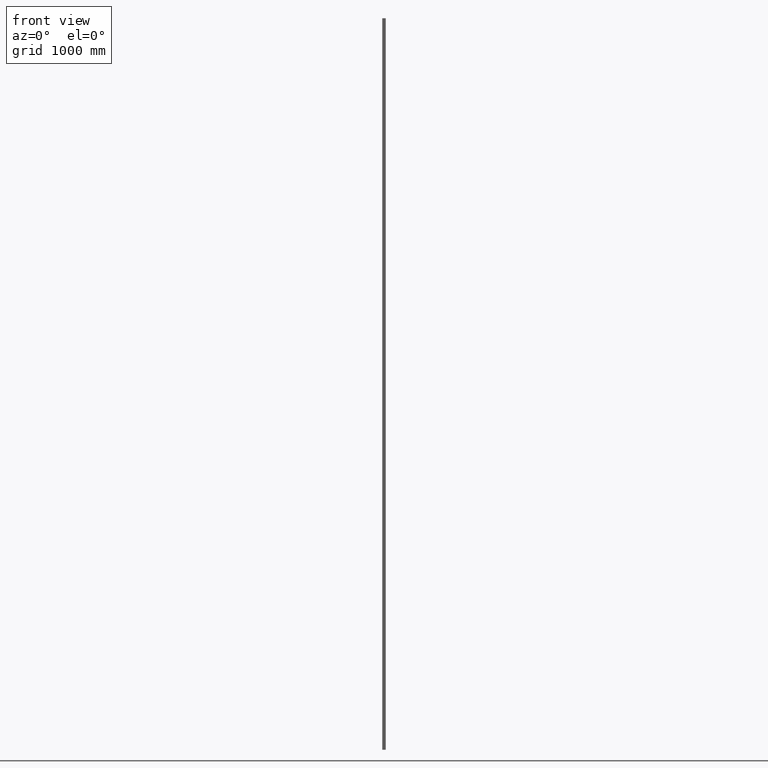
[diagram: clean part render]
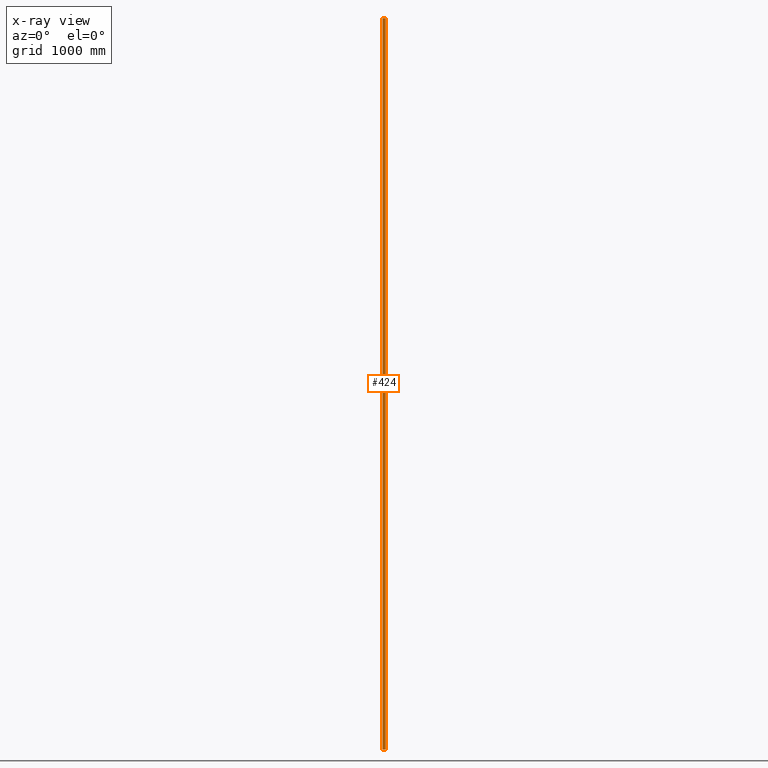
[diagram: x-ray — body ghosted, one internal face saturated and labeled with its STEP entity id]
A machine part, front view, then the same camera in x-ray: the body is ghosted and one INTERNAL B-rep face — a face not visible from any outside direction — is saturated and labeled: STEP entity #424.
In plain terms, the highlighted planar face has unit normal (0, -1, 0).
Its self-contained STEP definition (entity closure, byte-faithful):
#42=PLANE('',#529);
#64=FACE_OUTER_BOUND('',#87,.T.);
#87=EDGE_LOOP('',(#386,#387,#388,#389));
#117=LINE('',#757,#156);
#122=LINE('',#767,#161);
#127=LINE('',#780,#166);
#128=LINE('',#782,#167);
#156=VECTOR('',#621,10.);
#161=VECTOR('',#628,10.);
#166=VECTOR('',#647,10.);
#167=VECTOR('',#650,10.);
#216=VERTEX_POINT('',#754);
#217=VERTEX_POINT('',#756);
#220=VERTEX_POINT('',#764);
#221=VERTEX_POINT('',#766);
#265=EDGE_CURVE('',#216,#217,#117,.T.);
#270=EDGE_CURVE('',#220,#221,#122,.T.);
#277=EDGE_CURVE('',#216,#221,#127,.T.);
#278=EDGE_CURVE('',#220,#217,#128,.T.);
#386=ORIENTED_EDGE('',*,*,#278,.T.);
#387=ORIENTED_EDGE('',*,*,#265,.F.);
#388=ORIENTED_EDGE('',*,*,#277,.T.);
#389=ORIENTED_EDGE('',*,*,#270,.F.);
#424=ADVANCED_FACE('',(#64),#42,.T.);
#529=AXIS2_PLACEMENT_3D('',#783,#651,#652);
#621=DIRECTION('',(1.,7.93016446160826E-17,0.));
#628=DIRECTION('',(-1.,-7.93016446160826E-17,0.));
#647=DIRECTION('',(0.,0.,-1.));
#650=DIRECTION('',(0.,0.,1.));
#651=DIRECTION('center_axis',(7.93016446160826E-17,-1.,0.));
#652=DIRECTION('ref_axis',(1.,7.93016446160826E-17,0.));
#754=CARTESIAN_POINT('',(-14.,-6.5,3000.));
#756=CARTESIAN_POINT('',(14.,-6.5,3000.));
#757=CARTESIAN_POINT('',(14.,-6.5,3000.));
#764=CARTESIAN_POINT('',(14.,-6.5,-3000.));
#766=CARTESIAN_POINT('',(-14.,-6.5,-3000.));
#767=CARTESIAN_POINT('',(14.,-6.5,-3000.));
#780=CARTESIAN_POINT('',(-14.,-6.5,0.));
#782=CARTESIAN_POINT('',(14.,-6.5,0.));
#783=CARTESIAN_POINT('Origin',(-14.,-6.5,0.));